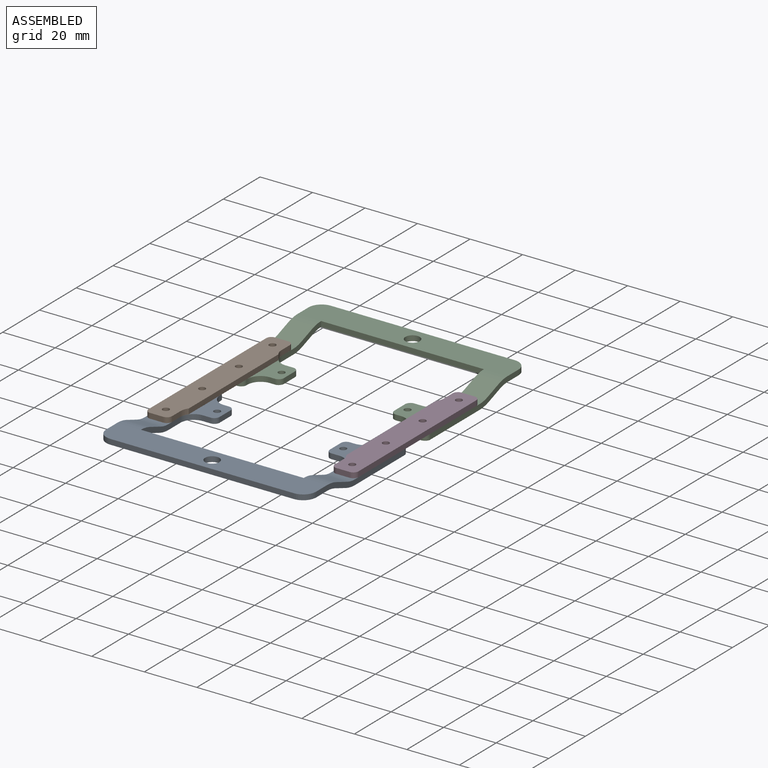
[diagram: assembled view]
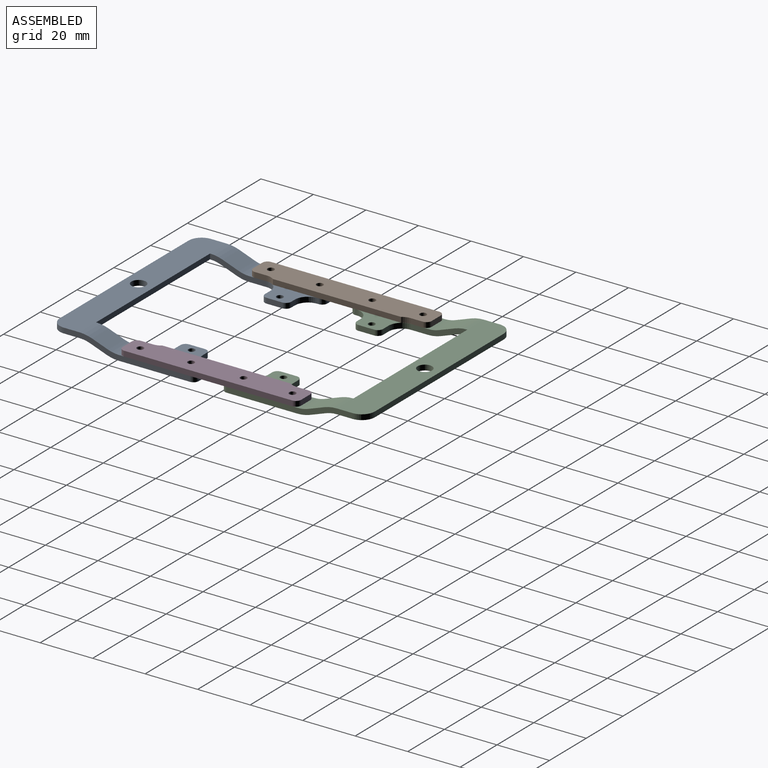
[diagram: assembled view, second angle]
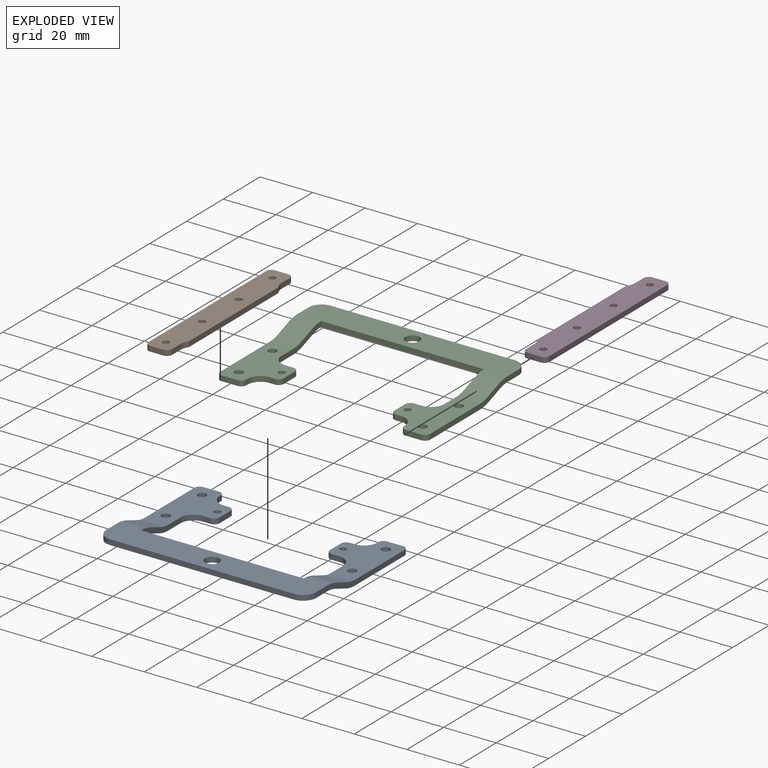
[diagram: exploded view]
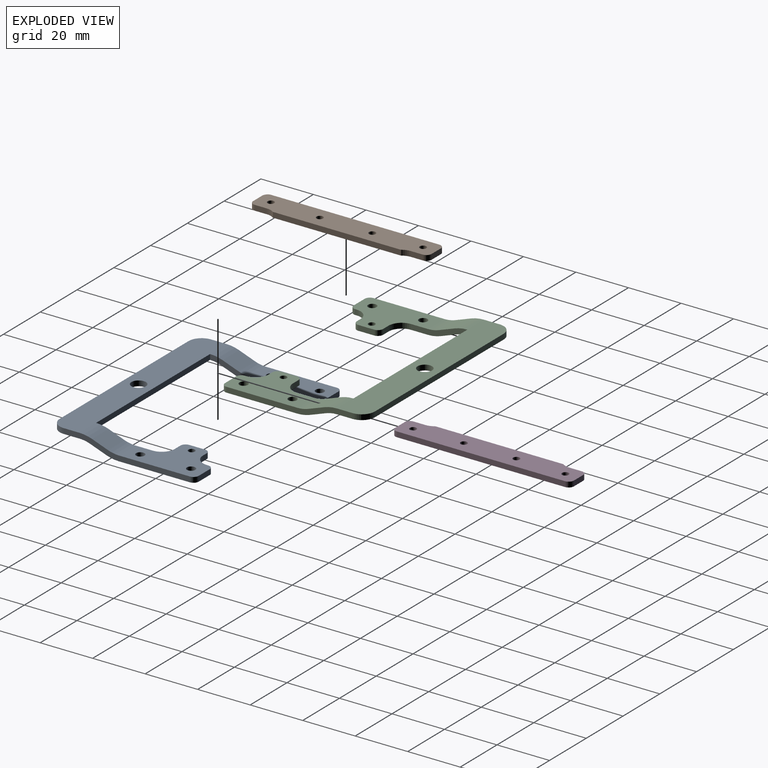
[diagram: exploded view, second angle]
ASSEMBLY  parts=4 mates=3
PART A: 71 faces, bbox 80x55x5.8 mm
  f0: plane 62x2mm, normal (0,-1,0), area 124mm2, adj f1,f6,f7,f8
  f1: plane 2x0mm, normal (1,0,0), area 0mm2, adj f0,f7,f8,f67
  f2: plane 6x2mm, normal (-1,0,0), area 12mm2, adj f7,f8,f9,f68
  f3: plane 70x2mm, normal (0,1,0), area 140mm2, adj f7,f8,f9,f10
  f4: plane 6x2mm, normal (1,0,0), area 12mm2, adj f7,f8,f10,f37
  f5: cylinder r=2.75mm len=5.5mm, axis (0,0,1), area 34.6mm2, adj f7,f8
  f6: plane 2x0mm, normal (-1,0,0), area 0mm2, adj f0,f7,f8,f38
  f7: plane 80x11mm, normal (0,0,-1), area 845.5mm2, adj f0,f1,f2,f3,f4,f5,f6,f9
  f8: plane 80x11mm, normal (0,0,1), area 845.5mm2, adj f0,f1,f2,f3,f4,f5,f6,f9
  f9: cylinder r=5mm len=5mm, axis (0,0,1), area 15.7mm2, adj f2,f3,f7,f8
  f10: cylinder r=5mm len=5mm, axis (0,0,-1), area 15.7mm2, adj f3,f4,f7,f8
  f11: plane 6.85x4.12mm, normal (1,0,0), area 13.1mm2, adj f13,f14,f33,f37
  f12: plane 6.85x4.12mm, normal (-1,0,0), area 13.1mm2, adj f13,f14,f34,f38
  f13: plane 9x6.17mm, normal (0,0.34,-0.94), area 59mm2, adj f11,f12,f35,f40
  f14: plane 9x6.17mm, normal (0,-0.34,0.94), area 59mm2, adj f11,f12,f36,f39
  f15: cylinder r=2mm len=2mm, axis (0,0,-1), area 6.3mm2, adj f16,f29,f30,f31
  f16: plane 2x0.5mm, normal (-1,0,0), area 1mm2, adj f15,f17,f30,f31
  f17: cylinder r=5mm len=5mm, axis (0,0,-1), area 15.7mm2, adj f16,f18,f30,f31
  f18: plane 2x2mm, normal (0,-1,0), area 4mm2, adj f17,f19,f30,f31
  f19: cylinder r=2mm len=2mm, axis (0,0,-1), area 6.3mm2, adj f18,f20,f30,f31
  f20: plane 6x2mm, normal (-1,0,0), area 12mm2, adj f19,f21,f30,f31
  f21: cylinder r=2mm len=2mm, axis (0,0,-1), area 6.3mm2, adj f20,f22,f30,f31
  f22: plane 3x2mm, normal (0,1,0), area 6mm2, adj f21,f23,f30,f31
  f23: cylinder r=5mm len=5mm, axis (0,0,-1), area 15.7mm2, adj f22,f24,f30,f31
  f24: plane 6.51x2mm, normal (-1,0,0), area 13mm2, adj f23,f30,f31,f34
  f25: plane 27.01x2mm, normal (1,0,0), area 54mm2, adj f30,f31,f32,f33
  f26: cylinder r=1.6mm len=3.2mm, axis (0,0,-1), area 20.1mm2, adj f30,f31
  f27: cylinder r=1.6mm len=3.2mm, axis (0,0,-1), area 20.1mm2, adj f30,f31
  f28: cylinder r=1.25mm len=2.5mm, axis (0,0,-1), area 15.7mm2, adj f30,f31
  f29: plane 6x2mm, normal (0,-1,0), area 12mm2, adj f15,f30,f31,f32
  f30: plane 29.01x19mm, normal (0,0,-1), area 354.9mm2, adj f15,f16,f17,f18,f19,f20,f21,f22
  f31: plane 29.01x19mm, normal (0,0,1), area 354.9mm2, adj f15,f16,f17,f18,f19,f20,f21,f22
  f32: cylinder r=2mm len=2mm, axis (0,0,1), area 6.3mm2, adj f25,f29,f30,f31
  f33: plane 4.75x2.72mm, normal (1,0,0), area 9mm2, adj f11,f25,f35,f36
  f34: plane 4.75x2.72mm, normal (-1,0,0), area 9mm2, adj f12,f24,f35,f36
  f35: cylinder r=13.9mm len=9mm, axis (1,0,0), area 43.7mm2, adj f13,f30,f33,f34
  f36: cylinder r=11.9mm len=9mm, axis (1,0,0), area 37.4mm2, adj f14,f31,f33,f34
  f37: plane 4.75x2.72mm, normal (1,0,0), area 9mm2, adj f4,f11,f39,f40
  f38: plane 4.75x2.72mm, normal (-1,0,0), area 9mm2, adj f6,f12,f39,f40
  f39: cylinder r=13.9mm len=9mm, axis (1,0,0), area 43.7mm2, adj f8,f14,f37,f38
  f40: cylinder r=11.9mm len=9mm, axis (1,0,0), area 37.4mm2, adj f7,f13,f37,f38
  f41: plane 6.85x4.12mm, normal (-1,0,0), area 13.1mm2, adj f43,f44,f64,f68
  f42: plane 6.85x4.12mm, normal (1,0,0), area 13.1mm2, adj f43,f44,f63,f67
  f43: plane 9x6.17mm, normal (0,0.34,-0.94), area 59mm2, adj f41,f42,f65,f70
  f44: plane 9x6.17mm, normal (0,-0.34,0.94), area 59mm2, adj f41,f42,f66,f69
  f45: plane 27.01x2mm, normal (-1,0,0), area 54mm2, adj f60,f61,f62,f64
  f46: plane 6.51x2mm, normal (1,0,0), area 13mm2, adj f47,f60,f61,f63
  f47: cylinder r=5mm len=5mm, axis (0,0,-1), area 15.7mm2, adj f46,f48,f60,f61
  f48: plane 3x2mm, normal (0,1,0), area 6mm2, adj f47,f49,f60,f61
  f49: cylinder r=2mm len=2mm, axis (0,0,-1), area 6.3mm2, adj f48,f50,f60,f61
  f50: plane 6x2mm, normal (1,0,0), area 12mm2, adj f49,f51,f60,f61
  f51: cylinder r=2mm len=2mm, axis (0,0,-1), area 6.3mm2, adj f50,f52,f60,f61
  f52: plane 2x2mm, normal (0,-1,0), area 4mm2, adj f51,f53,f60,f61
  f53: cylinder r=5mm len=5mm, axis (0,0,-1), area 15.7mm2, adj f52,f54,f60,f61
  f54: plane 2x0.5mm, normal (1,0,0), area 1mm2, adj f53,f55,f60,f61
  f55: cylinder r=2mm len=2mm, axis (0,0,-1), area 6.3mm2, adj f54,f59,f60,f61
  f56: cylinder r=1.6mm len=3.2mm, axis (0,0,-1), area 20.1mm2, adj f60,f61
  f57: cylinder r=1.6mm len=3.2mm, axis (0,0,-1), area 20.1mm2, adj f60,f61
  f58: cylinder r=1.25mm len=2.5mm, axis (0,0,-1), area 15.7mm2, adj f60,f61
  f59: plane 6x2mm, normal (0,-1,0), area 12mm2, adj f55,f60,f61,f62
  f60: plane 29.01x19mm, normal (0,0,-1), area 354.9mm2, adj f45,f46,f47,f48,f49,f50,f51,f52
  f61: plane 29.01x19mm, normal (0,0,1), area 354.9mm2, adj f45,f46,f47,f48,f49,f50,f51,f52
  f62: cylinder r=2mm len=2mm, axis (0,0,1), area 6.3mm2, adj f45,f59,f60,f61
  f63: plane 4.75x2.72mm, normal (1,0,0), area 9mm2, adj f42,f46,f65,f66
  f64: plane 4.75x2.72mm, normal (-1,0,0), area 9mm2, adj f41,f45,f65,f66
  f65: cylinder r=13.9mm len=9mm, axis (1,0,0), area 43.7mm2, adj f43,f60,f63,f64
  f66: cylinder r=11.9mm len=9mm, axis (1,0,0), area 37.4mm2, adj f44,f61,f63,f64
  f67: plane 4.75x2.72mm, normal (1,0,0), area 9mm2, adj f1,f42,f69,f70
  f68: plane 4.75x2.72mm, normal (-1,0,0), area 9mm2, adj f2,f41,f69,f70
  f69: cylinder r=13.9mm len=9mm, axis (1,0,0), area 43.7mm2, adj f8,f44,f67,f68
  f70: cylinder r=11.9mm len=9mm, axis (1,0,0), area 37.4mm2, adj f7,f43,f67,f68
PART B: 18 faces, bbox 68x10x2 mm
  f0: plane 48.8x2mm, normal (0,1,0), area 97.6mm2, adj f3,f4,f12,f13
  f1: plane 5x2mm, normal (-1,0,0), area 10mm2, adj f3,f4,f15,f16
  f2: plane 5x2mm, normal (1,0,0), area 10mm2, adj f3,f4,f14,f17
  f3: plane 68x10mm, normal (0,0,1), area 639.6mm2, adj f0,f1,f2,f5,f6,f7,f8,f9
  f4: plane 68x10mm, normal (0,0,-1), area 639.6mm2, adj f0,f1,f2,f5,f6,f7,f8,f9
  f5: plane 64x2mm, normal (0,-1,0), area 128mm2, adj f3,f4,f16,f17
  f6: plane 4.6x2mm, normal (0,1,0), area 9.2mm2, adj f3,f4,f12,f14
  f7: plane 4.6x2mm, normal (0,1,0), area 9.2mm2, adj f3,f4,f13,f15
  f8: cylinder r=1.25mm len=2.5mm, axis (0,0,1), area 15.7mm2, adj f3,f4
  f9: cylinder r=1.25mm len=2.5mm, axis (0,0,1), area 15.7mm2, adj f3,f4
  f10: cylinder r=1.25mm len=2.5mm, axis (0,0,1), area 15.7mm2, adj f3,f4
  f11: cylinder r=1.25mm len=2.5mm, axis (0,0,1), area 15.7mm2, adj f3,f4
  f12: cylinder r=5mm len=3mm, axis (0,0,-1), area 6.4mm2, adj f0,f3,f4,f6
  f13: cylinder r=5mm len=3mm, axis (0,0,-1), area 6.4mm2, adj f0,f3,f4,f7
  f14: cylinder r=2mm len=2mm, axis (0,0,1), area 6.3mm2, adj f2,f3,f4,f6
  f15: cylinder r=2mm len=2mm, axis (0,0,1), area 6.3mm2, adj f1,f3,f4,f7
  f16: cylinder r=2mm len=2mm, axis (0,0,-1), area 6.3mm2, adj f1,f3,f4,f5
  f17: cylinder r=2mm len=2mm, axis (0,0,1), area 6.3mm2, adj f2,f3,f4,f5
PART C: same geometry as A
PART D: same geometry as B
PLACE A rot(axis=(0,0,1),180deg) t=(0,0,0)mm
PLACE B rot(axis=(0,0,-1),90deg) t=(-35,0,2)mm
PLACE C at identity fixed
PLACE D rot(axis=(0,0,1),90deg) t=(35,0,2)mm
MATE fastened B.f11 <-> C.f56  axis (0,0,-1) through (-35.5,29,2)mm
MATE fastened B.f8 <-> A.f26  axis (0,0,-1) through (-35.5,-29,2)mm
MATE fastened D.f8 <-> C.f26  axis (0,0,-1) through (35.5,29,2)mm
